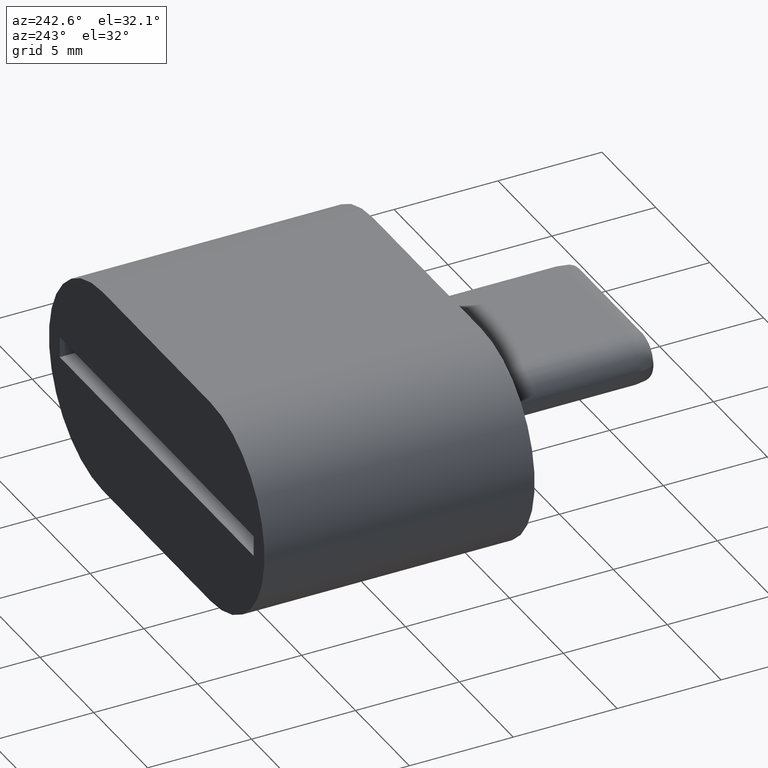
[diagram: clean part render]
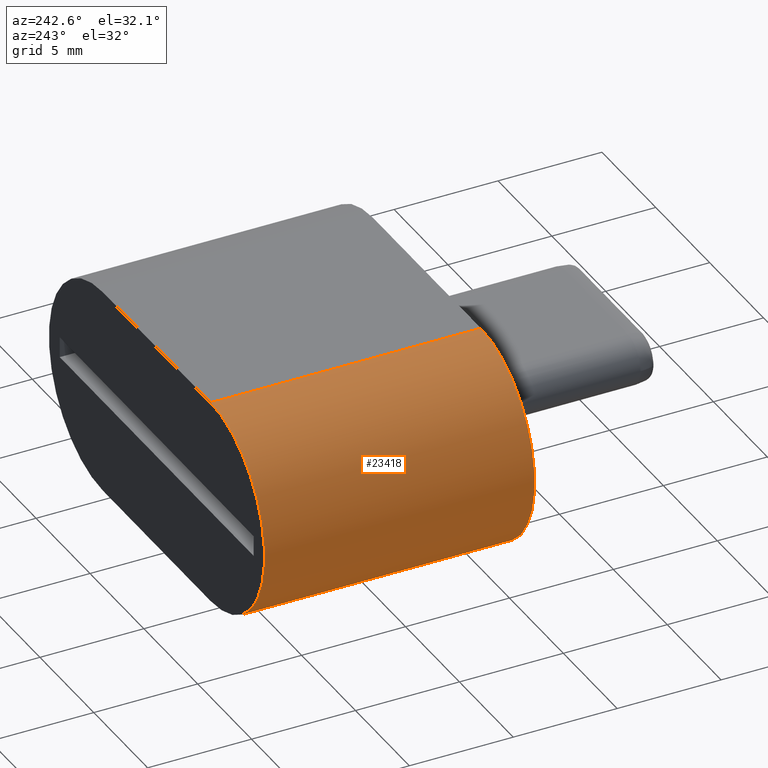
[diagram: same view with one face highlighted and labeled with its STEP entity id]
A machine part, auxiliary view. The second image highlights one B-rep face of the part: STEP entity #23418.
In plain terms, the highlighted cylindrical surface (partial cylindrical patch) has radius 5 mm, axis along (0, -1, -0).
Its self-contained STEP definition (entity closure, byte-faithful):
#1305=CYLINDRICAL_SURFACE('',#24965,5.);
#1501=CIRCLE('',#24963,5.);
#1503=CIRCLE('',#24966,5.);
#1836=FACE_OUTER_BOUND('',#3256,.T.);
#3256=EDGE_LOOP('',(#15570,#15571,#15572,#15573));
#4710=LINE('',#32184,#7275);
#4715=LINE('',#32199,#7280);
#7275=VECTOR('',#26528,10.);
#7280=VECTOR('',#26543,10.);
#9836=VERTEX_POINT('',#32182);
#9837=VERTEX_POINT('',#32183);
#9840=VERTEX_POINT('',#32191);
#9842=VERTEX_POINT('',#32197);
#12104=EDGE_CURVE('',#9836,#9837,#4710,.T.);
#12108=EDGE_CURVE('',#9840,#9836,#1501,.T.);
#12111=EDGE_CURVE('',#9837,#9842,#1503,.T.);
#12112=EDGE_CURVE('',#9842,#9840,#4715,.T.);
#15570=ORIENTED_EDGE('',*,*,#12111,.T.);
#15571=ORIENTED_EDGE('',*,*,#12112,.T.);
#15572=ORIENTED_EDGE('',*,*,#12108,.T.);
#15573=ORIENTED_EDGE('',*,*,#12104,.T.);
#23418=ADVANCED_FACE('',(#1836),#1305,.T.);
#24963=AXIS2_PLACEMENT_3D('',#32192,#26534,#26535);
#24965=AXIS2_PLACEMENT_3D('',#32196,#26539,#26540);
#24966=AXIS2_PLACEMENT_3D('',#32198,#26541,#26542);
#26528=DIRECTION('',(0.,1.38777878078143E-16,1.));
#26534=DIRECTION('center_axis',(0.,1.38777878078143E-16,1.));
#26535=DIRECTION('ref_axis',(-0.707106781186547,-0.707106781186548,0.));
#26539=DIRECTION('center_axis',(0.,1.38777878078143E-16,1.));
#26540=DIRECTION('ref_axis',(-0.707106781186547,0.707106781186547,0.));
#26541=DIRECTION('center_axis',(1.66533453693773E-16,-1.38777878078143E-16,
-1.));
#26542=DIRECTION('ref_axis',(-0.707106781186547,0.707106781186547,0.));
#26543=DIRECTION('',(0.,-1.38777878078143E-16,-1.));
#32182=CARTESIAN_POINT('',(-4.99999999999218,-5.00000000000001,-21.8726897671165));
#32183=CARTESIAN_POINT('',(-4.99999999999218,-5.00000000000001,-8.87268976711646));
#32184=CARTESIAN_POINT('',(-4.99999999999218,-5.00000000000001,-16.5870064708262));
#32191=CARTESIAN_POINT('',(-4.99999999999218,4.99999999999999,-21.8726897671165));
#32192=CARTESIAN_POINT('Origin',(-4.99999999999218,-1.25693020703561E-14,
-21.8726897671165));
#32196=CARTESIAN_POINT('Origin',(-4.99999999999218,-1.2945989182929E-14,
-16.5870064708262));
#32197=CARTESIAN_POINT('',(-4.99999999999218,4.99999999999999,-8.87268976711646));
#32198=CARTESIAN_POINT('Origin',(-4.99999999999218,-1.18754126799654E-14,
-8.87268976711646));
#32199=CARTESIAN_POINT('',(-4.99999999999218,4.99999999999999,-16.5870064708262));